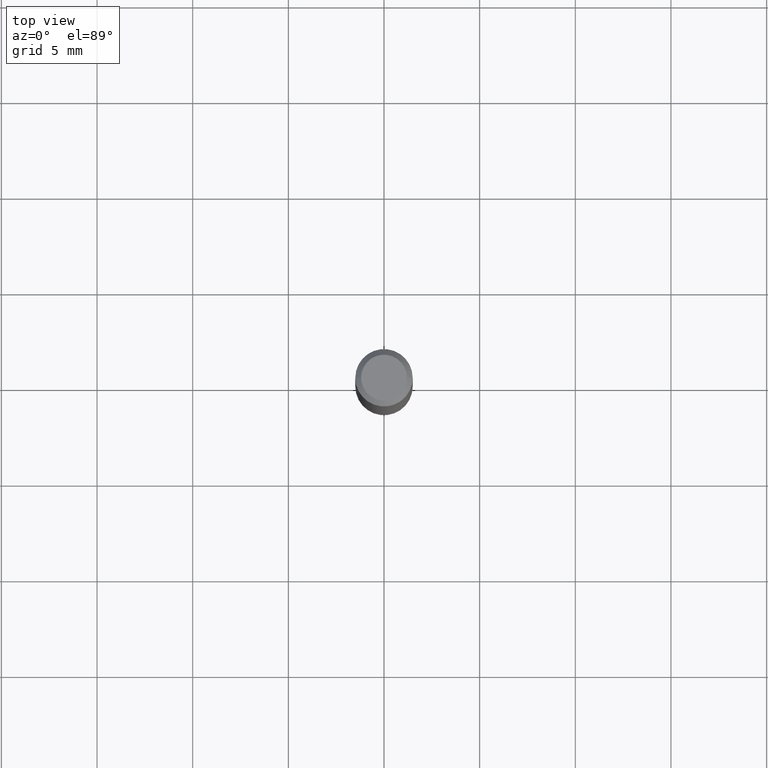
[diagram: clean part render]
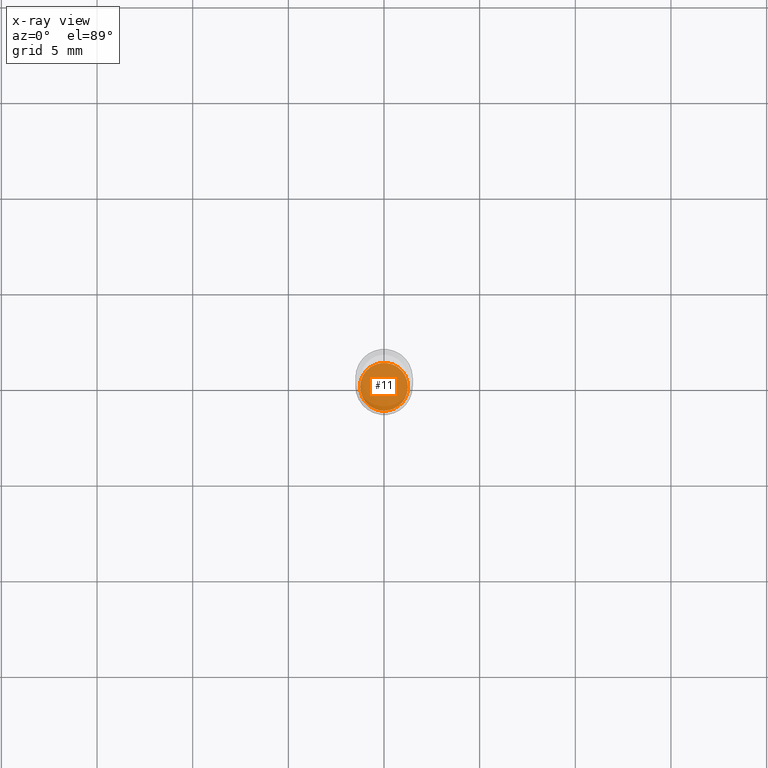
[diagram: x-ray — body ghosted, one internal face saturated and labeled with its STEP entity id]
A machine part, top view, then the same camera in x-ray: the body is ghosted and one INTERNAL B-rep face — a face not visible from any outside direction — is saturated and labeled: STEP entity #11.
In plain terms, the highlighted planar face has unit normal (-0, 0, 1).
Its self-contained STEP definition (entity closure, byte-faithful):
#11 = ADVANCED_FACE ( 'NONE', ( #43 ), #338, .F. ) ;
#43 = FACE_OUTER_BOUND ( 'NONE', #139, .T. ) ;
#45 = DIRECTION ( 'NONE',  ( 1.000000000000000000, -6.982962677686265922E-15, 4.876176775795935793E-29 ) ) ;
#118 = AXIS2_PLACEMENT_3D ( 'NONE', #441, #376, #224 ) ;
#125 = CIRCLE ( 'NONE', #432, 0.04929999999999999660 ) ;
#139 = EDGE_LOOP ( 'NONE', ( #455, #254 ) ) ;
#160 = DIRECTION ( 'NONE',  ( 1.000000000000000000, -6.982962677686266711E-15, 0.000000000000000000 ) ) ;
#185 = DIRECTION ( 'NONE',  ( -2.438088387897960049E-29, 3.491481338843145188E-15, 1.000000000000000000 ) ) ;
#205 = EDGE_CURVE ( 'NONE', #330, #343, #125, .T. ) ;
#224 = DIRECTION ( 'NONE',  ( 1.000000000000000000, -6.982962677686266711E-15, 0.000000000000000000 ) ) ;
#254 = ORIENTED_EDGE ( 'NONE', *, *, #446, .F. ) ;
#258 = AXIS2_PLACEMENT_3D ( 'NONE', #262, #185, #45 ) ;
#262 = CARTESIAN_POINT ( 'NONE',  ( 5.590086428765449529E-30, -6.853888423807571382E-15, -1.094500000000000028 ) ) ;
#330 = VERTEX_POINT ( 'NONE', #401 ) ;
#338 = PLANE ( 'NONE',  #258 ) ;
#343 = VERTEX_POINT ( 'NONE', #365 ) ;
#351 = DIRECTION ( 'NONE',  ( -2.445468806185136597E-29, 3.491481338843145583E-15, 1.000000000000000000 ) ) ;
#353 = CARTESIAN_POINT ( 'NONE',  ( 2.676565608369632355E-29, -3.821426325363822773E-15, -1.094500000000000028 ) ) ;
#355 = CIRCLE ( 'NONE', #118, 0.04929999999999999660 ) ;
#365 = CARTESIAN_POINT ( 'NONE',  ( -0.04929999999999999660, -3.468479529459982106E-15, -1.094500000000000028 ) ) ;
#376 = DIRECTION ( 'NONE',  ( -2.445468806185136597E-29, 3.491481338843145583E-15, 1.000000000000000000 ) ) ;
#401 = CARTESIAN_POINT ( 'NONE',  ( 0.04929999999999999660, -4.165686385373755899E-15, -1.094500000000000028 ) ) ;
#432 = AXIS2_PLACEMENT_3D ( 'NONE', #353, #351, #160 ) ;
#441 = CARTESIAN_POINT ( 'NONE',  ( 2.676565608369632355E-29, -3.821426325363822773E-15, -1.094500000000000028 ) ) ;
#446 = EDGE_CURVE ( 'NONE', #343, #330, #355, .T. ) ;
#455 = ORIENTED_EDGE ( 'NONE', *, *, #205, .F. ) ;